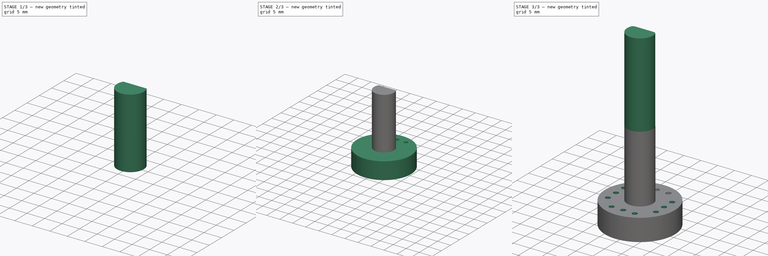
[diagram: build sequence overview — one tinted view per stage of 3, left to right]
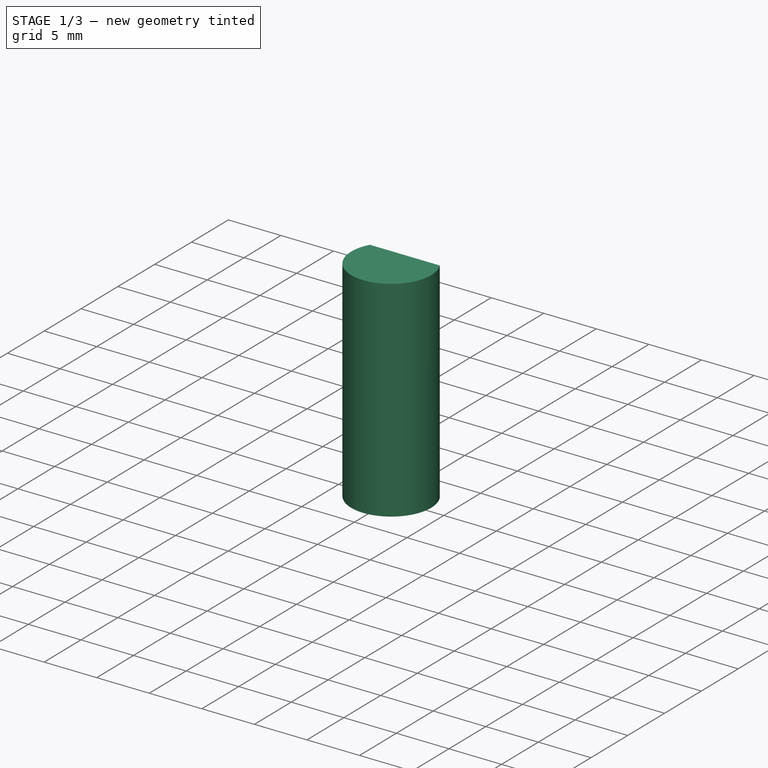
[diagram: stage 1 of 3 — iso view after this stage's code; geometry added in this stage tinted green]
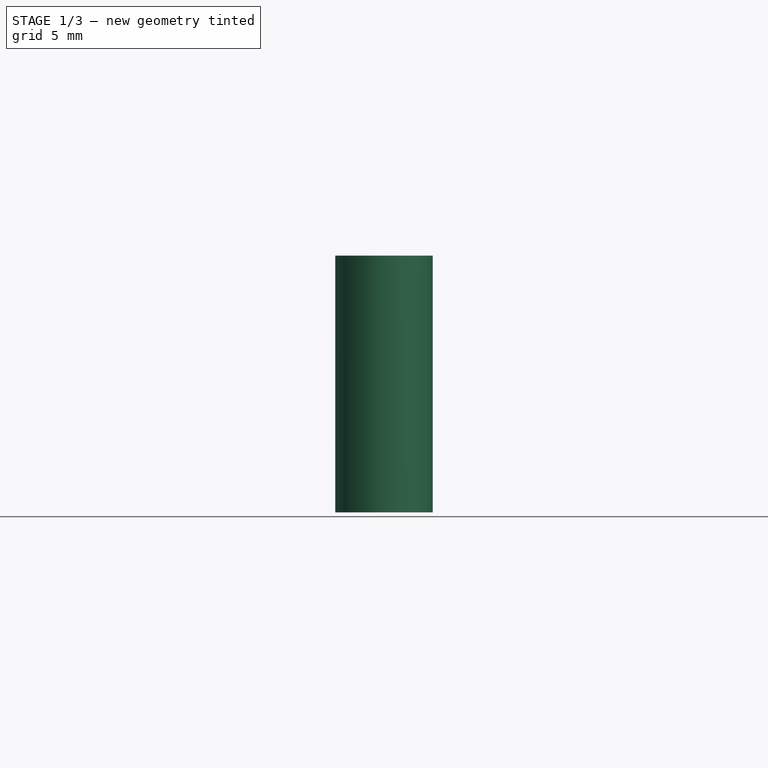
[diagram: stage 1 of 3 — front view after this stage's code; geometry added in this stage tinted green]
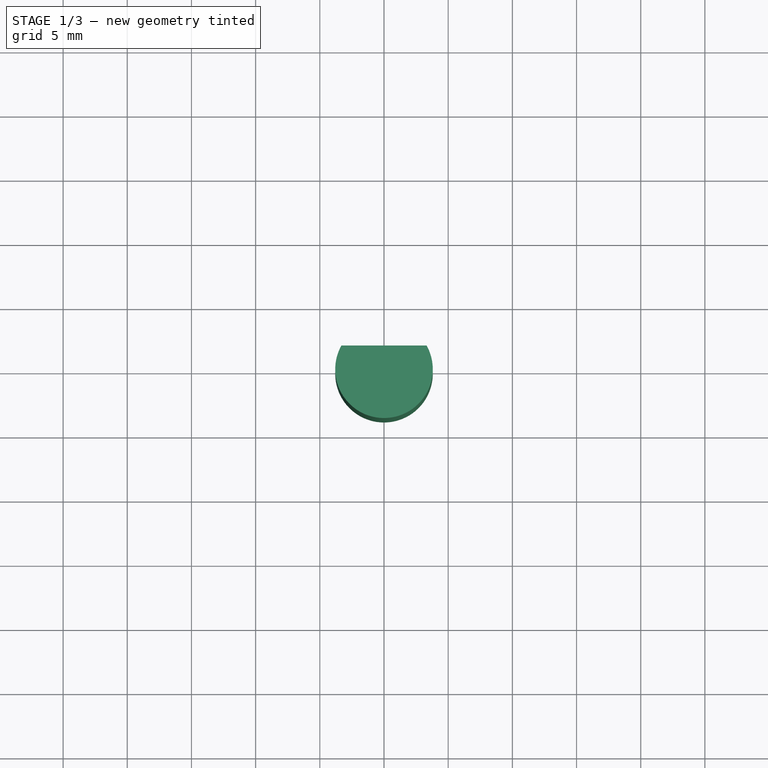
[diagram: stage 1 of 3 — top view after this stage's code; geometry added in this stage tinted green]
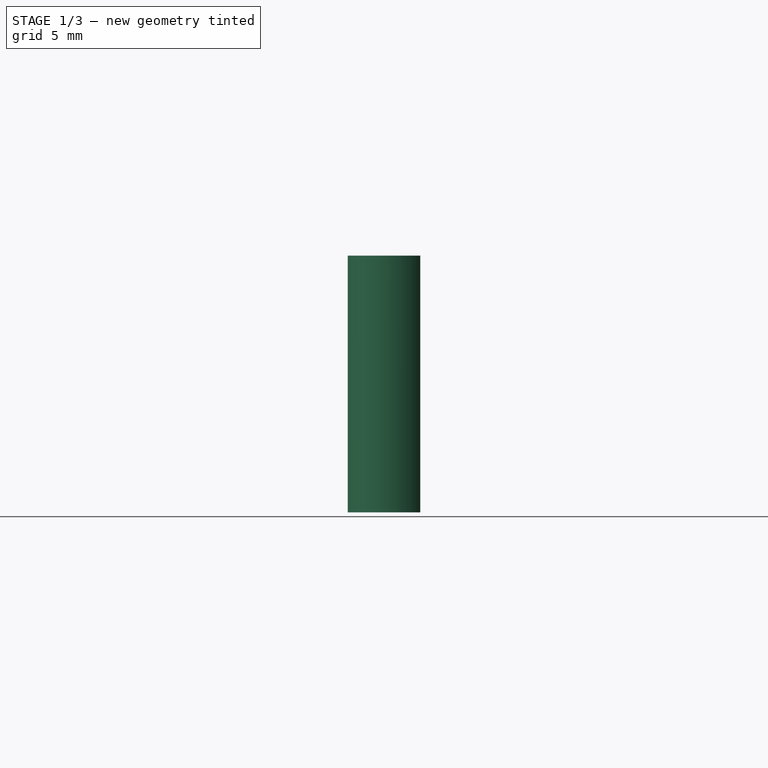
[diagram: stage 1 of 3 — right view after this stage's code; geometry added in this stage tinted green]
FCSTD DOCUMENT  (FreeCAD 0.20R29410 (Git))
Label: Servo_coupler_v1
License: All rights reserved
LicenseURL: http://en.wikipedia.org/wiki/All_rights_reserved
objects: Sketcher::SketchObject×4, Part::Extrusion×3, PartDesign::FeatureBase×1, PartDesign::Pocket×1, PartDesign::PolarPattern×1, PartDesign::Body×1, Part::Fillet×1
note: 13 computed .brp shape members not serialized (recipe doc carries the construction recipe); baked Part::Feature solids carry a one-line shape summary decoded from their .brp

FEATURE [Sketcher::SketchObject] Sketch  label="BasePlateSketch"
  FullyConstrained = true
  sketch-geometry (6):
    g0: ArcOfCircle CenterX=0 CenterY=0 CenterZ=0 NormalX=0 NormalY=0 NormalZ=1 AngleXU=0 Radius=3.8 StartAngle=2.63312 EndAngle=6.79166
    g1: Circle CenterX=0 CenterY=0 CenterZ=0 NormalX=0 NormalY=0 NormalZ=1 AngleXU=0 Radius=10.3
    g2: GeomPoint X=-3.31926 Y=1.85 Z=0
    g3: GeomPoint X=3.31926 Y=1.85 Z=0
    g4: LineSegment StartX=-3.31926 StartY=1.85 StartZ=0 EndX=3.31926 EndY=1.85 EndZ=0
    g5: GeomPoint X=0 Y=-3.8 Z=0
  constraints (12):
    c: Coincident(g0,g-1)
    c: Diameter(g0) = 7.6
    c: Coincident(g1,g0)
    c: Diameter(g1) = 20.6
    c: Coincident(g4,g2)
    c: Coincident(g4,g3)
    c: Horizontal(g4)
    c: PointOnObject(g5,g0)
    c: DistanceX(g5) = 0
    c: DistanceY(g5,g4) = 5.65
    c: Coincident(g0,g4)
    c: Coincident(g0,g4)
FEATURE [Part::Extrusion] Extrude  label="BaseExtrude"
  Base = -> Sketch
  Dir = (0,0,1)
  DirMode = 2
  FaceMakerClass = Part::FaceMakerBullseye
  LengthFwd = 0
  LengthRev = 6.5
  Solid = true
  Symmetric = false
FEATURE [Sketcher::SketchObject] Sketch001  label="DShaftLowerSketch"
  FullyConstrained = true
  MapMode = 5
  Placement = pos=(0,0,9e-16) rot=(0,0,1;0rad)
  Support = -> [Extrude]
  sketch-geometry (3):
    g0: ArcOfCircle CenterX=0 CenterY=0 CenterZ=0 NormalX=0 NormalY=0 NormalZ=1 AngleXU=0 Radius=3.8 StartAngle=2.63312 EndAngle=6.79166
    g1: LineSegment StartX=-3.31926 StartY=1.85 StartZ=0 EndX=3.31926 EndY=1.85 EndZ=0
    g2: GeomPoint X=0 Y=-3.8 Z=0
  constraints (8):
    c: Coincident(g0,g-1)
    c: Diameter(g0) = 7.6
    c: Horizontal(g1)
    c: PointOnObject(g2,g0)
    c: DistanceX(g2) = 0
    c: DistanceY(g2,g1) = 5.65
    c: Coincident(g0,g1)
    c: Coincident(g0,g1)
FEATURE [Part::Extrusion] Extrude001  label="DShaftLowerExtrude"
  Base = -> Sketch001
  Dir = (0,0,1)
  DirMode = 2
  FaceMakerClass = Part::FaceMakerBullseye
  LengthFwd = 20
  LengthRev = 0
  Solid = true
  Symmetric = false
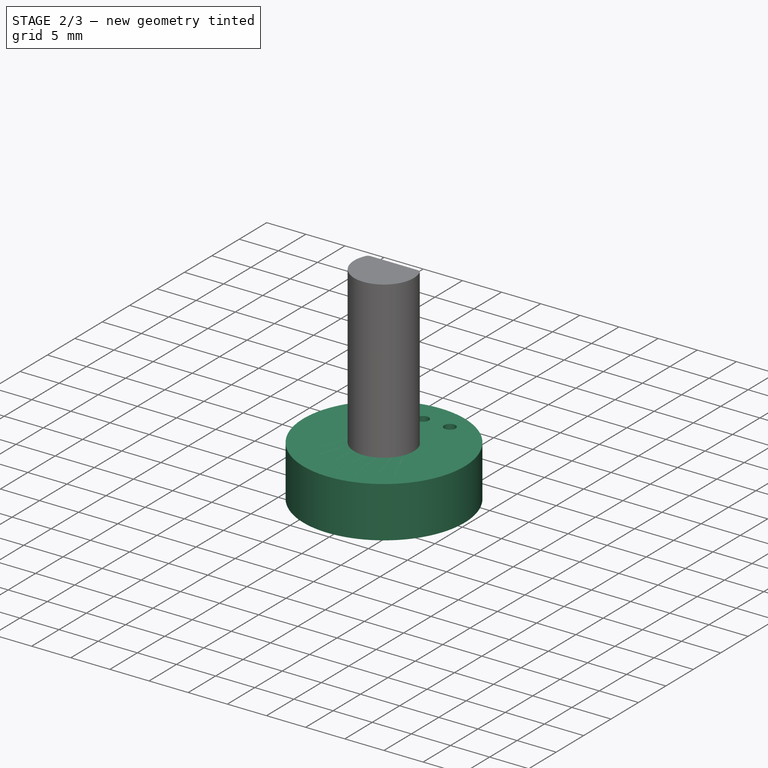
[diagram: stage 2 of 3 — iso view after this stage's code; geometry added in this stage tinted green]
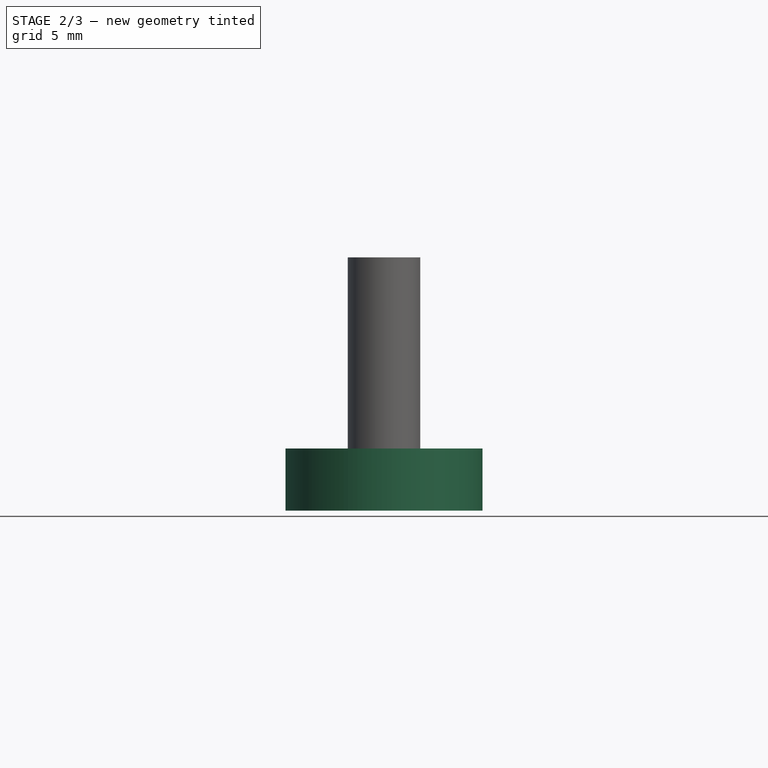
[diagram: stage 2 of 3 — front view after this stage's code; geometry added in this stage tinted green]
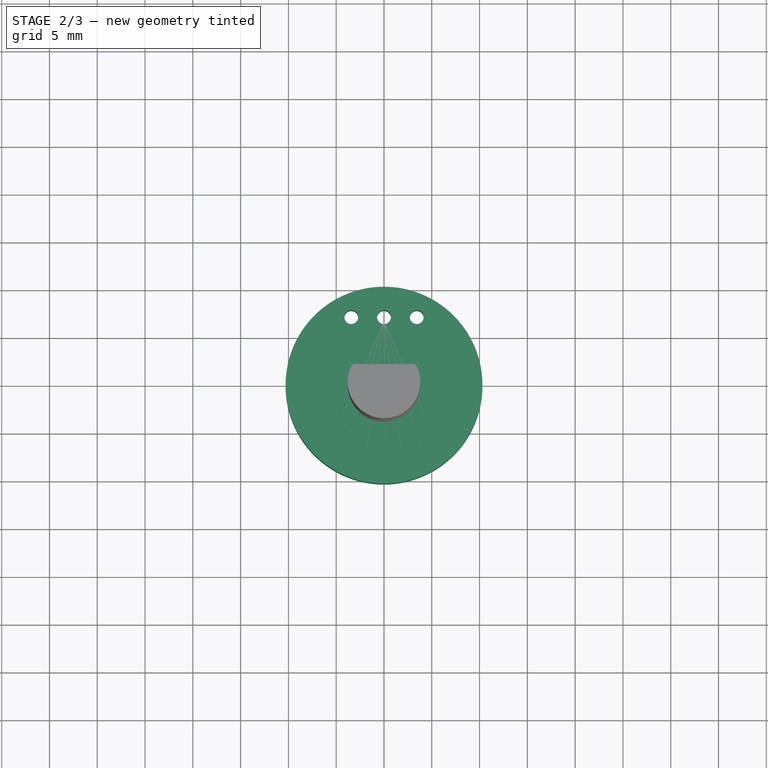
[diagram: stage 2 of 3 — top view after this stage's code; geometry added in this stage tinted green]
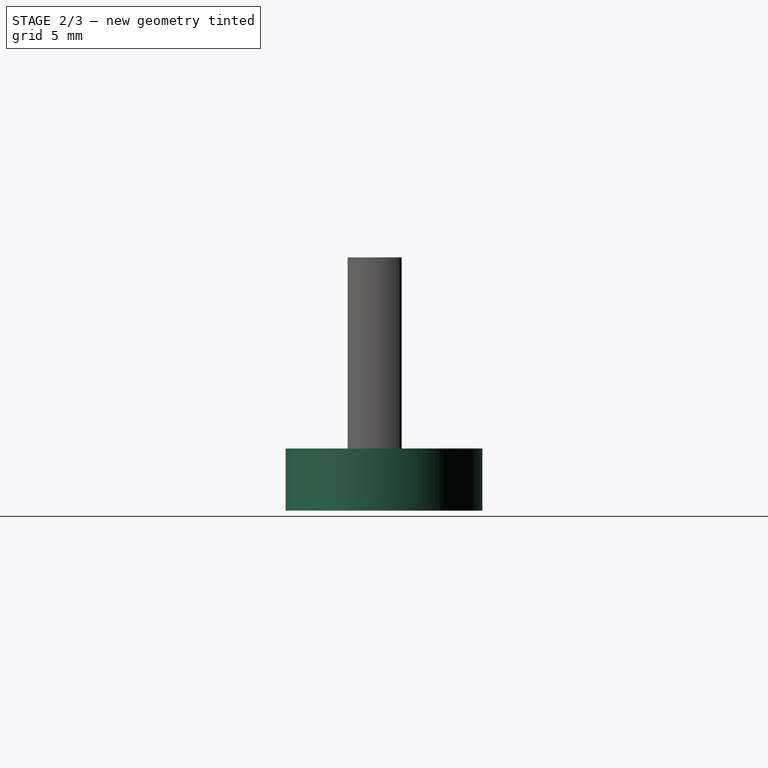
[diagram: stage 2 of 3 — right view after this stage's code; geometry added in this stage tinted green]
FEATURE [Sketcher::SketchObject] Sketch003  label="ServoHornHoleSketch"
  FullyConstrained = true
  MapMode = 5
  Placement = pos=(0,0,9e-16) rot=(0,0,1;0rad)
  Support = -> [Extrude]
  sketch-geometry (3):
    g0: Circle CenterX=0 CenterY=7.125 CenterZ=0 NormalX=0 NormalY=0 NormalZ=1 AngleXU=0 Radius=0.725
    g1: Circle CenterX=3.425 CenterY=7.125 CenterZ=0 NormalX=0 NormalY=0 NormalZ=1 AngleXU=0 Radius=0.725
    g2: Circle CenterX=-3.425 CenterY=7.125 CenterZ=0 NormalX=0 NormalY=0 NormalZ=1 AngleXU=0 Radius=0.725
  constraints (9):
    c: PointOnObject(g0,g-2)
    c: Diameter(g0) = 1.45
    c: DistanceY(g0) = 7.125
    c: Horizontal(g0,g1)
    c: Diameter(g1) = 1.45
    c: DistanceX(g0,g1) = 3.425
    c: Horizontal(g2,g0)
    c: Diameter(g2) = 1.45
    c: DistanceX(g2,g0) = 3.425
FEATURE [PartDesign::FeatureBase] BaseFeature
  BaseFeature = -> Extrude
FEATURE [PartDesign::Pocket] Pocket  label="ScrewHolePocket"
  BaseFeature = -> BaseFeature
  Direction = (0,0,-1)
  Length = 10
  Length2 = 5
  Profile = -> Sketch003
  ReferenceAxis = -> Sketch003 [N_Axis]
  Type = 0
FEATURE [PartDesign::Body] Body001  label="BaseBody"
  BaseFeature = -> Extrude
  Group = -> [BaseFeature,Sketch003,Pocket,PolarPattern]
  Origin = -> Origin002
  Tip = -> PolarPattern
FEATURE [Part::Fillet] Fillet  label="DShaftLowerExtrudeFillet"
  Base = -> Extrude001
  Edges = 2 edges r=0.5: [Edge1,Edge2]
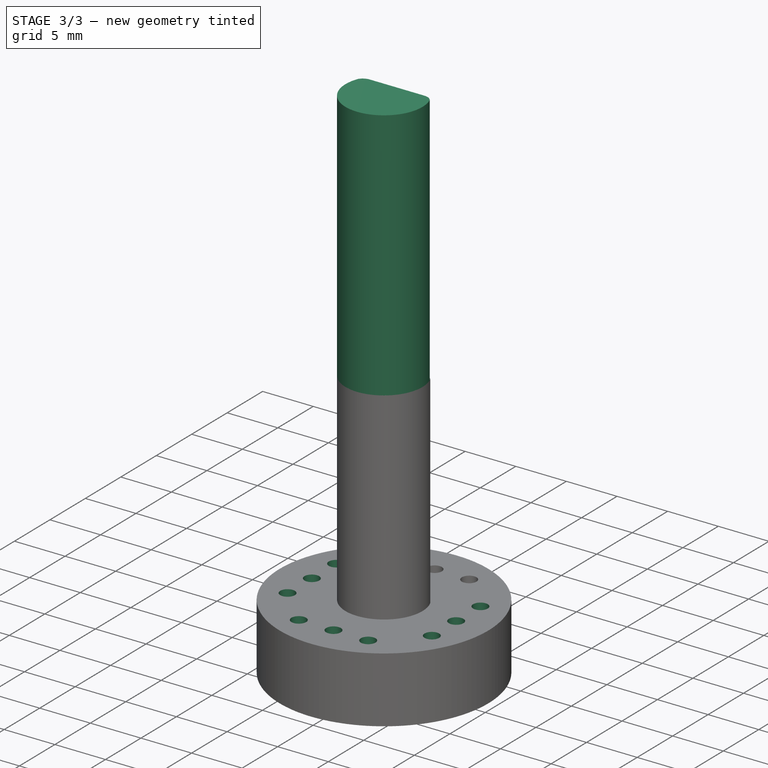
[diagram: stage 3 of 3 — iso view after this stage's code; geometry added in this stage tinted green]
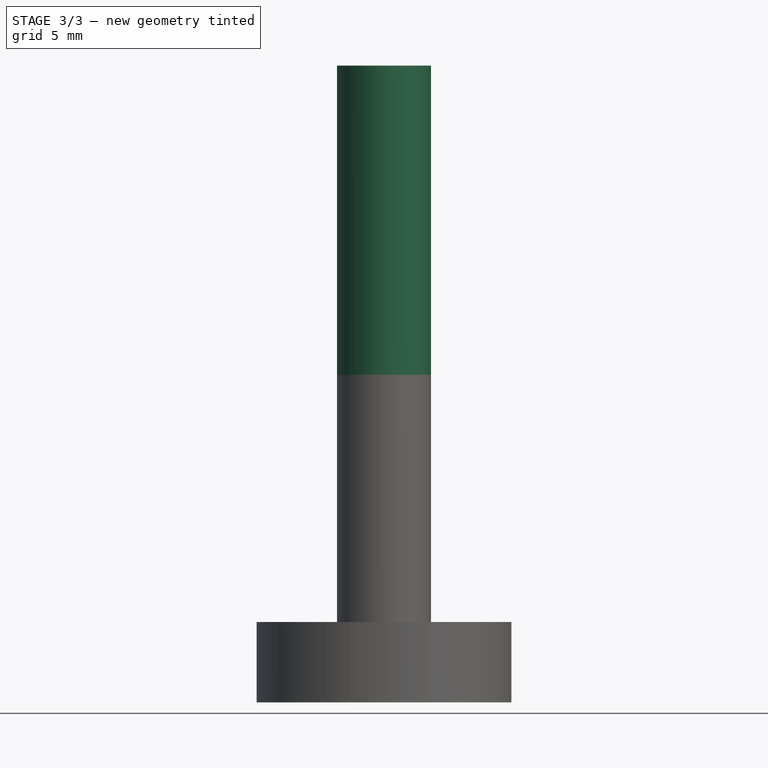
[diagram: stage 3 of 3 — front view after this stage's code; geometry added in this stage tinted green]
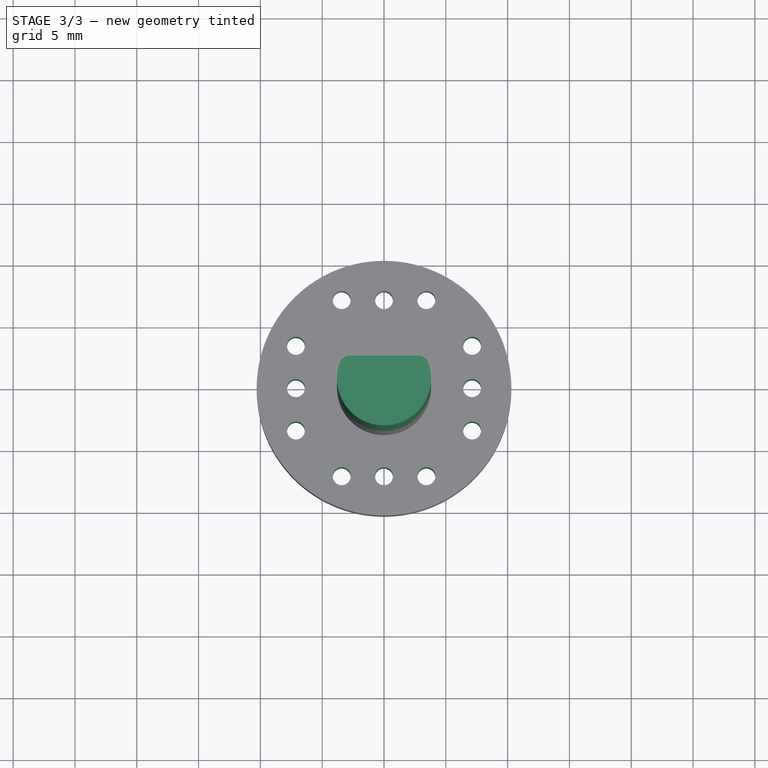
[diagram: stage 3 of 3 — top view after this stage's code; geometry added in this stage tinted green]
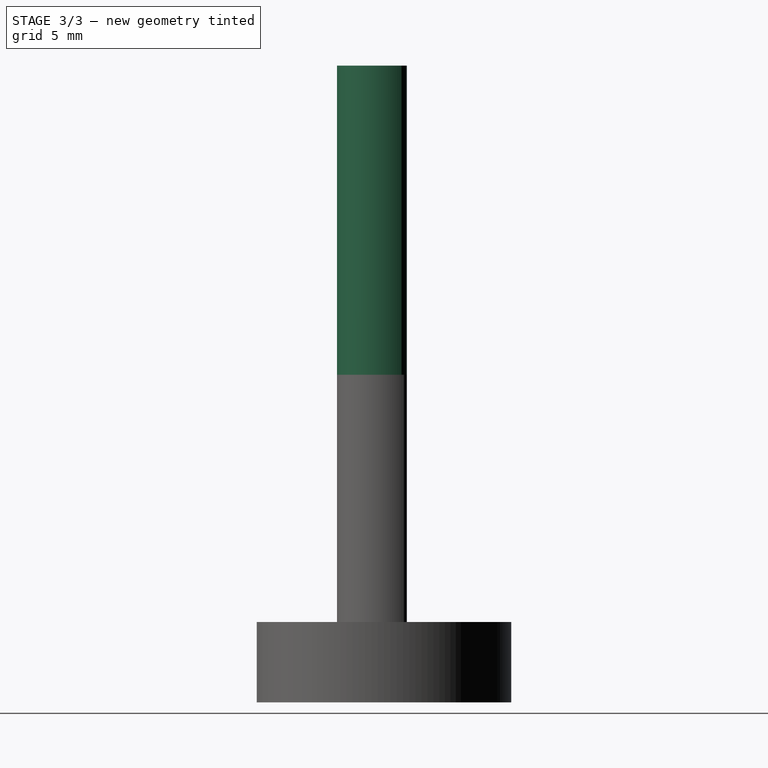
[diagram: stage 3 of 3 — right view after this stage's code; geometry added in this stage tinted green]
FEATURE [Sketcher::SketchObject] Sketch002  label="DShaftUpperSketch"
  ExternalGeometry = -> [Extrude001]
  FullyConstrained = false
  MapMode = 5
  Placement = pos=(0,0,20) rot=(0,0,1;0rad)
  Support = -> [Extrude001]
  sketch-geometry (4):
    g0: ArcOfCircle CenterX=-2.7 CenterY=0.850416 CenterZ=0 NormalX=0 NormalY=0 NormalZ=1 AngleXU=0 Radius=1 StartAngle=1.59965 EndAngle=2.5475
    g1: ArcOfCircle CenterX=2.7 CenterY=0.850496 CenterZ=0 NormalX=0 NormalY=0 NormalZ=1 AngleXU=0 Radius=1 StartAngle=0.594236 EndAngle=1.53931
    g2: LineSegment StartX=-2.72885 StartY=1.85 StartZ=0 EndX=2.73148 EndY=1.85 EndZ=0
    g3: ArcOfCircle CenterX=0 CenterY=0 CenterZ=0 NormalX=0 NormalY=0 NormalZ=1 AngleXU=0 Radius=3.8 StartAngle=2.7614 EndAngle=6.66343
  constraints (11):
    c: PointOnObject(g0,g-3)
    c: Radius(g0) = 1
    c: DistanceX(g0,g-4) = 2.7
    c: PointOnObject(g1,g-3)
    c: Radius(g1) = 1
    c: DistanceX(g1) = 2.7
    c: Coincident(g2,g0)
    c: Coincident(g2,g1)
    c: Coincident(g3,g-4)
    c: Coincident(g3,g0)
    c: Coincident(g1,g3)
FEATURE [Part::Extrusion] Extrude002  label="DShaftUpperExtrude"
  Base = -> Sketch002
  Dir = (0,0,1)
  DirMode = 2
  FaceMakerClass = Part::FaceMakerBullseye
  LengthFwd = 25
  LengthRev = 0
  Solid = true
  Symmetric = false
FEATURE [PartDesign::PolarPattern] PolarPattern  label="ScrewHolePolarPattern"
  Angle = 360
  Axis = -> Sketch003 [N_Axis]
  BaseFeature = -> Pocket
  Occurrences = 4
  Originals = -> [Pocket]
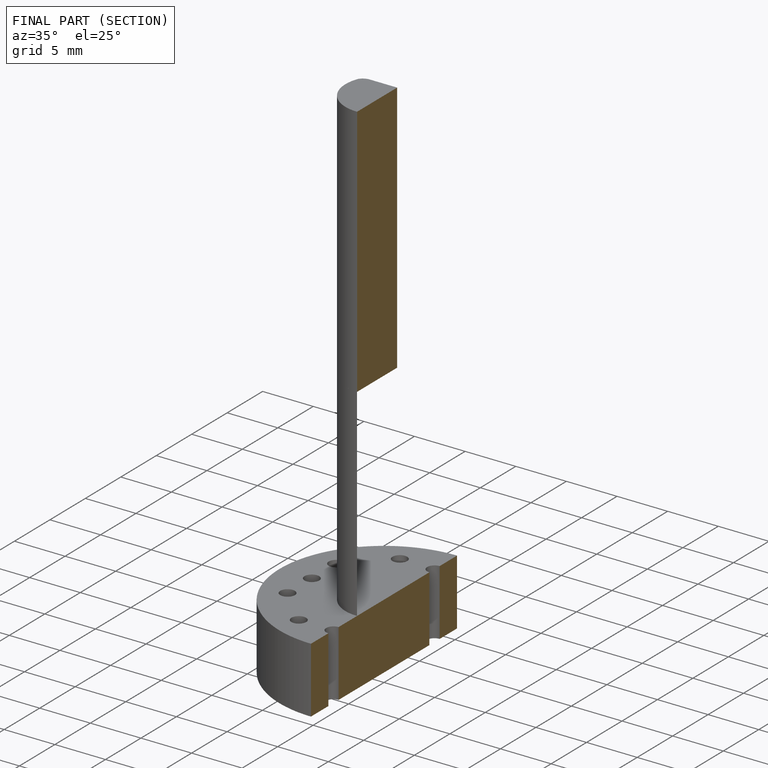
[diagram: finished part — half-section view (interior)]
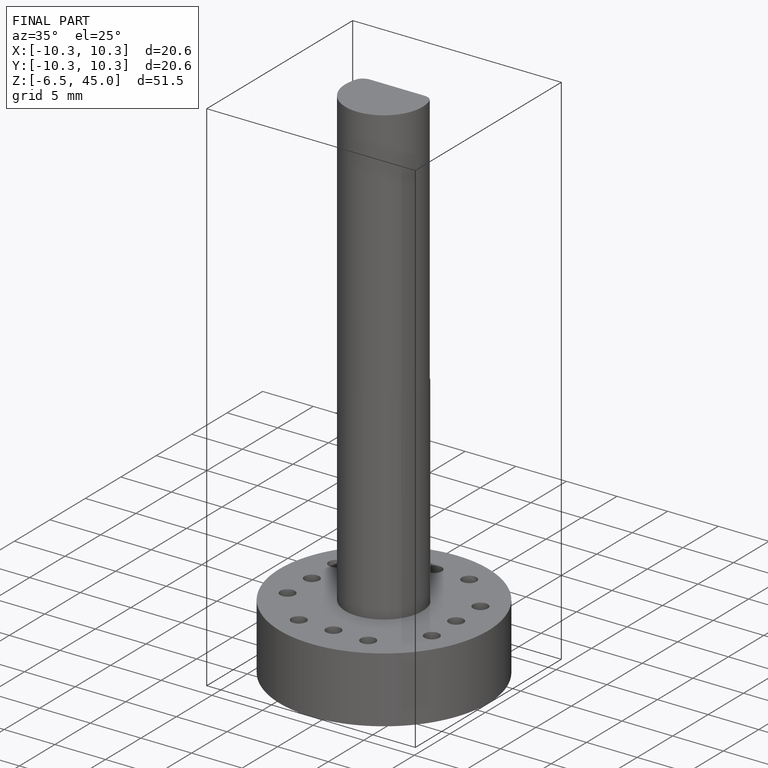
[diagram: finished part — iso view with bounding-box wireframe]
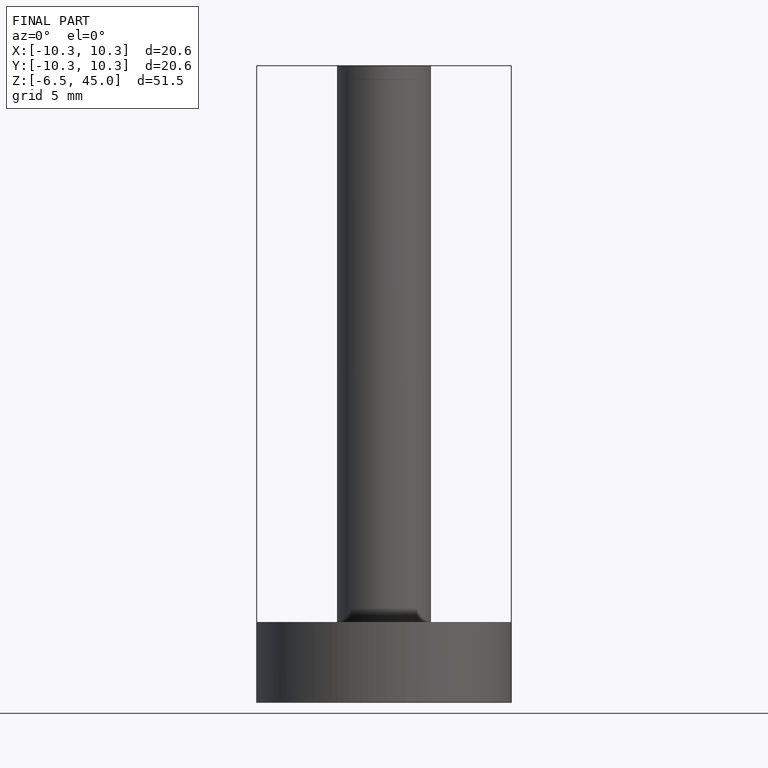
[diagram: finished part — front view with bounding-box wireframe]
